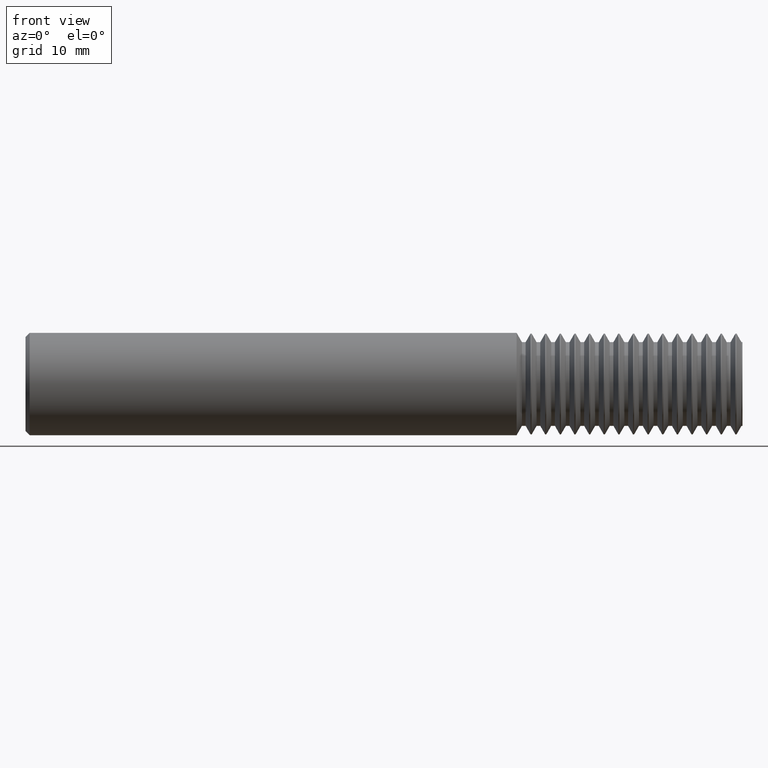
[diagram: clean part render]
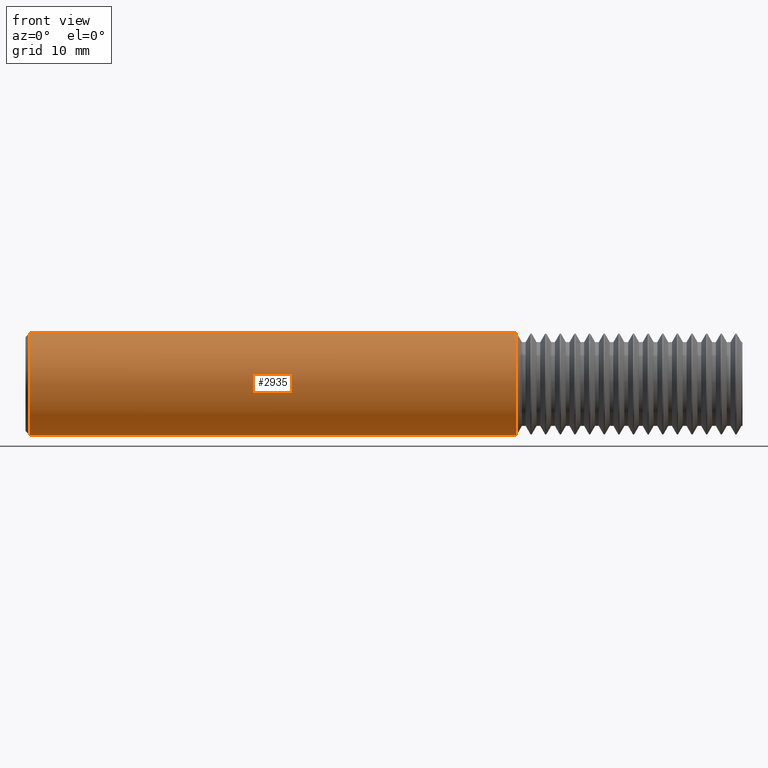
[diagram: same view with one face highlighted and labeled with its STEP entity id]
A machine part, front view. The second image highlights one B-rep face of the part: STEP entity #2935.
In plain terms, the highlighted cylindrical surface (partial cylindrical patch) has radius 6.3462 mm, axis along (-1, -0, -0).
Its self-contained STEP definition (entity closure, byte-faithful):
#3 = FACE_OUTER_BOUND ( 'NONE', #1995, .T. ) ;
#50 = DIRECTION ( 'NONE',  ( 1.000000000000000000, 0.000000000000000000, 0.000000000000000000 ) ) ;
#379 = ORIENTED_EDGE ( 'NONE', *, *, #3079, .T. ) ;
#443 = CARTESIAN_POINT ( 'NONE',  ( 0.000000000000000000, 0.000000000000000000, 0.2498499999999999888 ) ) ;
#588 = CARTESIAN_POINT ( 'NONE',  ( 0.02000000000000009409, 0.000000000000000000, -0.2498499999999999888 ) ) ;
#640 = EDGE_CURVE ( 'NONE', #3115, #1452, #1865, .T. ) ;
#718 = DIRECTION ( 'NONE',  ( 0.000000000000000000, 0.000000000000000000, 1.000000000000000000 ) ) ;
#745 = AXIS2_PLACEMENT_3D ( 'NONE', #1317, #50, #1603 ) ;
#808 = AXIS2_PLACEMENT_3D ( 'NONE', #2373, #810, #1844 ) ;
#810 = DIRECTION ( 'NONE',  ( 1.000000000000000000, 0.000000000000000000, 0.000000000000000000 ) ) ;
#833 = CARTESIAN_POINT ( 'NONE',  ( 2.397170972285072477, 3.059780027669662547E-17, -0.2498500000000000720 ) ) ;
#950 = CARTESIAN_POINT ( 'NONE',  ( 0.02000000000000009409, 3.059780027669661931E-17, 0.2498499999999999888 ) ) ;
#958 = DIRECTION ( 'NONE',  ( -1.000000000000000000, -0.000000000000000000, -0.000000000000000000 ) ) ;
#985 = EDGE_CURVE ( 'NONE', #2469, #3115, #1621, .T. ) ;
#995 = CYLINDRICAL_SURFACE ( 'NONE', #1833, 0.2498499999999999888 ) ;
#1143 = VECTOR ( 'NONE', #2003, 39.37007874015748143 ) ;
#1317 = CARTESIAN_POINT ( 'NONE',  ( 0.02000000000000009409, 0.000000000000000000, 0.000000000000000000 ) ) ;
#1369 = CARTESIAN_POINT ( 'NONE',  ( 2.397170972285072477, 0.000000000000000000, 0.2498500000000000720 ) ) ;
#1374 = ORIENTED_EDGE ( 'NONE', *, *, #640, .F. ) ;
#1452 = VERTEX_POINT ( 'NONE', #588 ) ;
#1603 = DIRECTION ( 'NONE',  ( 0.000000000000000000, 0.000000000000000000, -1.000000000000000000 ) ) ;
#1621 = CIRCLE ( 'NONE', #808, 0.2498499999999999888 ) ;
#1833 = AXIS2_PLACEMENT_3D ( 'NONE', #3278, #958, #718 ) ;
#1844 = DIRECTION ( 'NONE',  ( 0.000000000000000000, 0.000000000000000000, 1.000000000000000000 ) ) ;
#1865 = LINE ( 'NONE', #2248, #2426 ) ;
#1995 = EDGE_LOOP ( 'NONE', ( #1374, #2293, #2446, #379 ) ) ;
#2003 = DIRECTION ( 'NONE',  ( -1.000000000000000000, -0.000000000000000000, -0.000000000000000000 ) ) ;
#2198 = EDGE_CURVE ( 'NONE', #2469, #2631, #2466, .T. ) ;
#2248 = CARTESIAN_POINT ( 'NONE',  ( 0.000000000000000000, 3.059780027669661931E-17, -0.2498499999999999888 ) ) ;
#2293 = ORIENTED_EDGE ( 'NONE', *, *, #985, .F. ) ;
#2373 = CARTESIAN_POINT ( 'NONE',  ( 2.397170972285072477, 0.000000000000000000, 0.000000000000000000 ) ) ;
#2426 = VECTOR ( 'NONE', #3153, 39.37007874015748143 ) ;
#2446 = ORIENTED_EDGE ( 'NONE', *, *, #2198, .T. ) ;
#2465 = CIRCLE ( 'NONE', #745, 0.2498499999999999888 ) ;
#2466 = LINE ( 'NONE', #443, #1143 ) ;
#2469 = VERTEX_POINT ( 'NONE', #1369 ) ;
#2631 = VERTEX_POINT ( 'NONE', #950 ) ;
#2935 = ADVANCED_FACE ( 'NONE', ( #3 ), #995, .T. ) ;
#3079 = EDGE_CURVE ( 'NONE', #2631, #1452, #2465, .T. ) ;
#3115 = VERTEX_POINT ( 'NONE', #833 ) ;
#3153 = DIRECTION ( 'NONE',  ( -1.000000000000000000, -0.000000000000000000, -0.000000000000000000 ) ) ;
#3278 = CARTESIAN_POINT ( 'NONE',  ( 0.000000000000000000, 0.000000000000000000, 0.000000000000000000 ) ) ;